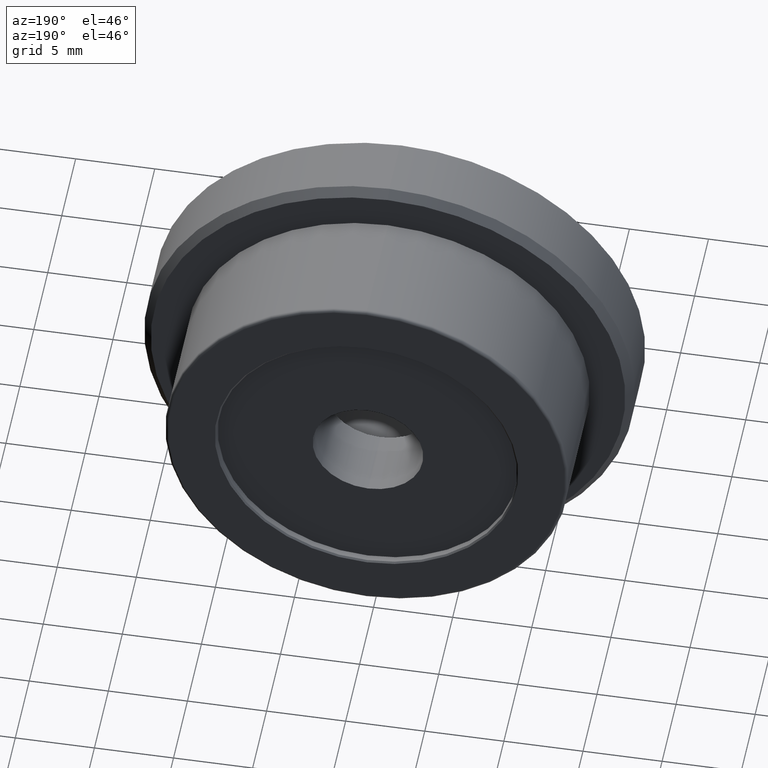
[diagram: clean part render]
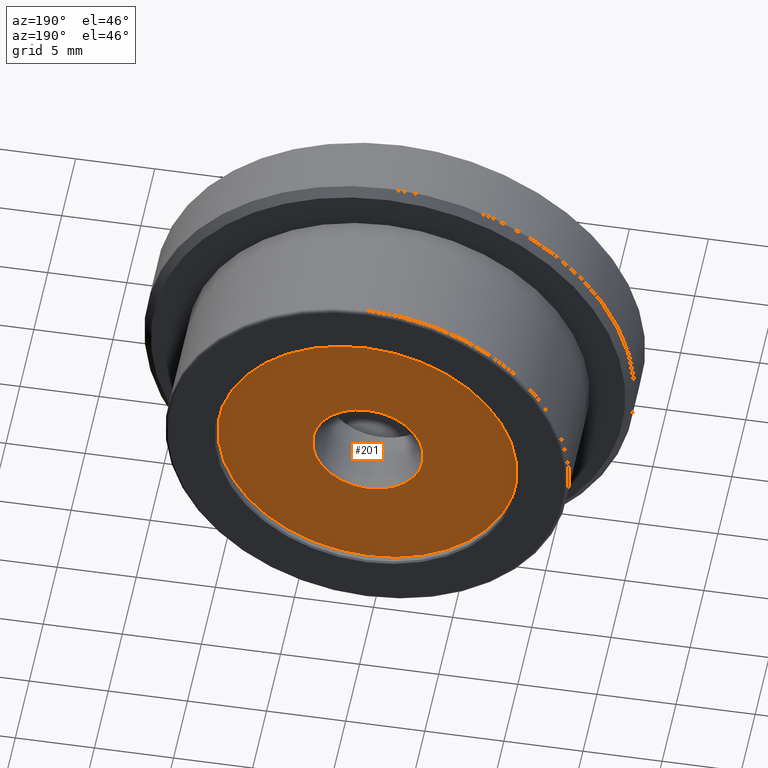
[diagram: same view with one face highlighted and labeled with its STEP entity id]
A machine part, auxiliary view. The second image highlights one B-rep face of the part: STEP entity #201.
In plain terms, the highlighted planar face has unit normal (0, -1, 0).
Its self-contained STEP definition (entity closure, byte-faithful):
#62 = AXIS2_PLACEMENT_3D ( 'NONE', #420, #69, #483 ) ;
#69 = DIRECTION ( 'NONE',  ( -0.0000000000000000000, 1.000000000000000000, -0.0000000000000000000 ) ) ;
#91 = CARTESIAN_POINT ( 'NONE',  ( 1.163414459189985700E-015, 12.00000000000000000, -9.500000000000001800 ) ) ;
#100 = VERTEX_POINT ( 'NONE', #415 ) ;
#140 = AXIS2_PLACEMENT_3D ( 'NONE', #493, #631, #640 ) ;
#153 = CARTESIAN_POINT ( 'NONE',  ( 0.0000000000000000000, 12.00000000000000000, 0.0000000000000000000 ) ) ;
#199 = EDGE_CURVE ( 'NONE', #668, #797, #819, .T. ) ;
#201 = ADVANCED_FACE ( 'NONE', ( #410, #779 ), #306, .F. ) ;
#303 = DIRECTION ( 'NONE',  ( -0.0000000000000000000, 1.000000000000000000, -0.0000000000000000000 ) ) ;
#306 = PLANE ( 'NONE',  #389 ) ;
#367 = DIRECTION ( 'NONE',  ( 0.0000000000000000000, -1.000000000000000000, 0.0000000000000000000 ) ) ;
#374 = CARTESIAN_POINT ( 'NONE',  ( 0.0000000000000000000, 12.00000000000000000, 9.500000000000001800 ) ) ;
#389 = AXIS2_PLACEMENT_3D ( 'NONE', #633, #367, #444 ) ;
#407 = DIRECTION ( 'NONE',  ( 0.0000000000000000000, 0.0000000000000000000, 1.000000000000000000 ) ) ;
#410 = FACE_BOUND ( 'NONE', #464, .T. ) ;
#415 = CARTESIAN_POINT ( 'NONE',  ( 4.286263797015737600E-016, 12.00000000000000000, -3.500000000000001300 ) ) ;
#420 = CARTESIAN_POINT ( 'NONE',  ( 0.0000000000000000000, 12.00000000000000000, 0.0000000000000000000 ) ) ;
#423 = DIRECTION ( 'NONE',  ( -0.0000000000000000000, 1.000000000000000000, -0.0000000000000000000 ) ) ;
#444 = DIRECTION ( 'NONE',  ( 0.0000000000000000000, -0.0000000000000000000, -1.000000000000000000 ) ) ;
#455 = AXIS2_PLACEMENT_3D ( 'NONE', #847, #303, #773 ) ;
#464 = EDGE_LOOP ( 'NONE', ( #638, #481 ) ) ;
#481 = ORIENTED_EDGE ( 'NONE', *, *, #758, .F. ) ;
#483 = DIRECTION ( 'NONE',  ( 0.0000000000000000000, 0.0000000000000000000, 1.000000000000000000 ) ) ;
#493 = CARTESIAN_POINT ( 'NONE',  ( 0.0000000000000000000, 12.00000000000000000, 0.0000000000000000000 ) ) ;
#513 = CIRCLE ( 'NONE', #62, 3.500000000000001300 ) ;
#615 = CIRCLE ( 'NONE', #647, 9.500000000000001800 ) ;
#631 = DIRECTION ( 'NONE',  ( -0.0000000000000000000, 1.000000000000000000, -0.0000000000000000000 ) ) ;
#633 = CARTESIAN_POINT ( 'NONE',  ( 9.500000000000001800, 12.00000000000000000, 0.0000000000000000000 ) ) ;
#638 = ORIENTED_EDGE ( 'NONE', *, *, #844, .F. ) ;
#640 = DIRECTION ( 'NONE',  ( 0.0000000000000000000, 0.0000000000000000000, 1.000000000000000000 ) ) ;
#647 = AXIS2_PLACEMENT_3D ( 'NONE', #153, #423, #407 ) ;
#651 = ORIENTED_EDGE ( 'NONE', *, *, #199, .T. ) ;
#668 = VERTEX_POINT ( 'NONE', #91 ) ;
#713 = CARTESIAN_POINT ( 'NONE',  ( 0.0000000000000000000, 12.00000000000000000, 3.500000000000001300 ) ) ;
#751 = ORIENTED_EDGE ( 'NONE', *, *, #870, .T. ) ;
#758 = EDGE_CURVE ( 'NONE', #100, #777, #770, .T. ) ;
#763 = EDGE_LOOP ( 'NONE', ( #751, #651 ) ) ;
#770 = CIRCLE ( 'NONE', #140, 3.500000000000001300 ) ;
#773 = DIRECTION ( 'NONE',  ( 0.0000000000000000000, 0.0000000000000000000, 1.000000000000000000 ) ) ;
#777 = VERTEX_POINT ( 'NONE', #713 ) ;
#779 = FACE_OUTER_BOUND ( 'NONE', #763, .T. ) ;
#797 = VERTEX_POINT ( 'NONE', #374 ) ;
#819 = CIRCLE ( 'NONE', #455, 9.500000000000001800 ) ;
#844 = EDGE_CURVE ( 'NONE', #777, #100, #513, .T. ) ;
#847 = CARTESIAN_POINT ( 'NONE',  ( 0.0000000000000000000, 12.00000000000000000, 0.0000000000000000000 ) ) ;
#870 = EDGE_CURVE ( 'NONE', #797, #668, #615, .T. ) ;